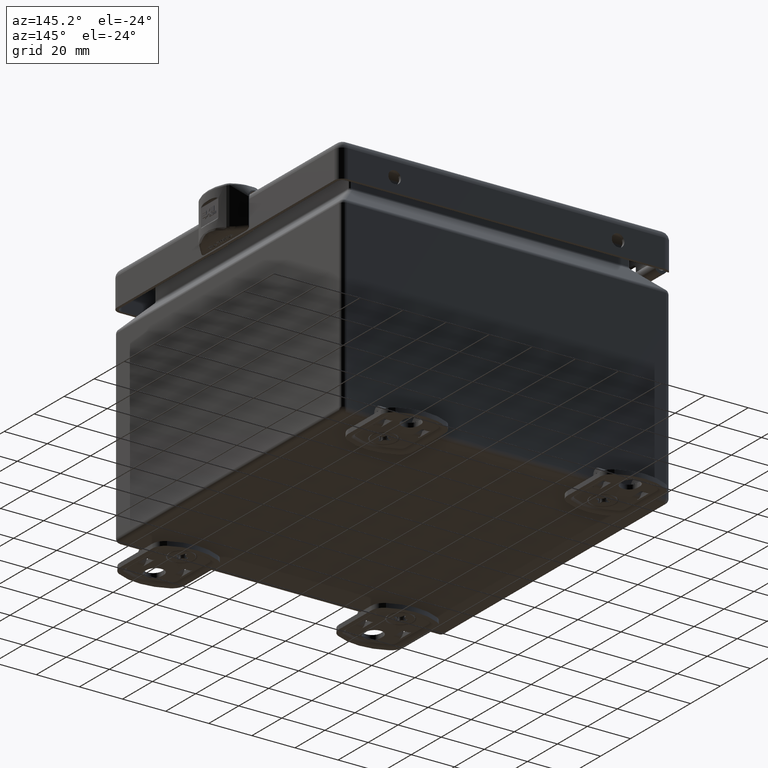
[diagram: clean part render]
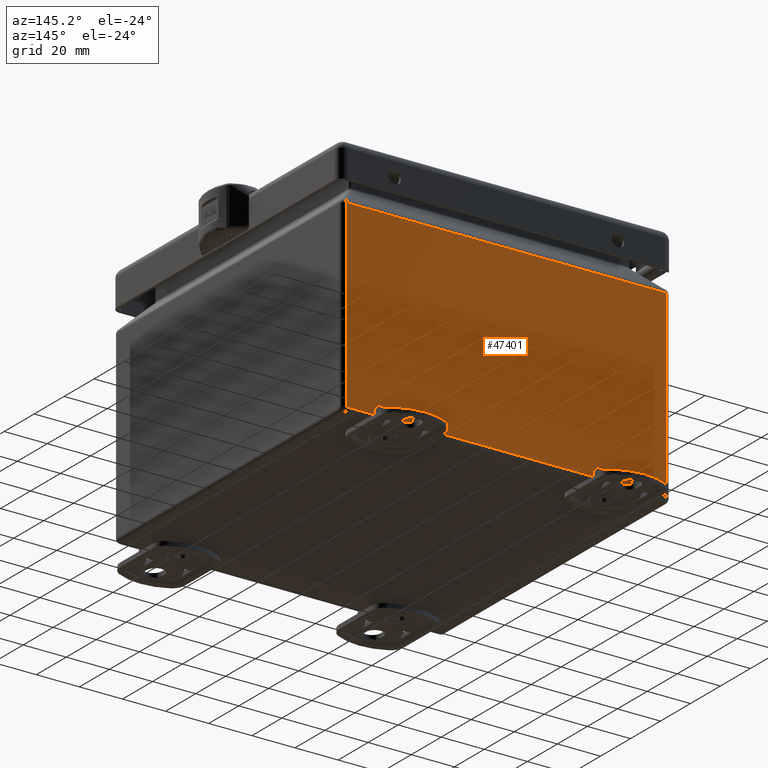
[diagram: same view with one face highlighted and labeled with its STEP entity id]
A machine part, auxiliary view. The second image highlights one B-rep face of the part: STEP entity #47401.
In plain terms, the highlighted planar face has unit normal (0, 1, 0).
Its self-contained STEP definition (entity closure, byte-faithful):
#2973=PLANE('',#51102);
#4232=FACE_OUTER_BOUND('',#7191,.T.);
#7191=EDGE_LOOP('',(#32642,#32643,#32644,#32645));
#10356=LINE('',#69498,#14384);
#10359=LINE('',#69513,#14387);
#10360=LINE('',#69520,#14388);
#10361=LINE('',#69521,#14389);
#14384=VECTOR('',#56095,0.393700787401575);
#14387=VECTOR('',#56118,0.393700787401575);
#14388=VECTOR('',#56131,0.393700787401575);
#14389=VECTOR('',#56132,0.393700787401575);
#20287=VERTEX_POINT('',#69491);
#20290=VERTEX_POINT('',#69496);
#20291=VERTEX_POINT('',#69510);
#20292=VERTEX_POINT('',#69512);
#24948=EDGE_CURVE('',#20290,#20287,#10356,.T.);
#24956=EDGE_CURVE('',#20291,#20292,#10359,.T.);
#24960=EDGE_CURVE('',#20292,#20290,#10360,.T.);
#24961=EDGE_CURVE('',#20287,#20291,#10361,.T.);
#32642=ORIENTED_EDGE('',*,*,#24948,.F.);
#32643=ORIENTED_EDGE('',*,*,#24960,.F.);
#32644=ORIENTED_EDGE('',*,*,#24956,.F.);
#32645=ORIENTED_EDGE('',*,*,#24961,.F.);
#47401=ADVANCED_FACE('',(#4232),#2973,.T.);
#51102=AXIS2_PLACEMENT_3D('',#69519,#56129,#56130);
#56095=DIRECTION('',(-8.47539707789791E-17,9.47019476145151E-17,-1.));
#56118=DIRECTION('',(-8.10202634738269E-17,-9.47019476145151E-17,1.));
#56129=DIRECTION('center_axis',(3.04444751532733E-17,1.,9.47019476145151E-17));
#56130=DIRECTION('ref_axis',(0.,-9.47019476145151E-17,1.));
#56131=DIRECTION('',(-1.,3.04444751532734E-17,-5.74287201250194E-17));
#56132=DIRECTION('',(1.,-3.04444751532733E-17,0.));
#69491=CARTESIAN_POINT('',(-2.916,3.,0.0839999999999999));
#69496=CARTESIAN_POINT('',(-2.916,3.,3.43715505376066));
#69498=CARTESIAN_POINT('',(-2.916,3.,2.06459086935095));
#69510=CARTESIAN_POINT('',(2.916,3.,0.0839999999999999));
#69512=CARTESIAN_POINT('',(2.916,3.,3.43715505376066));
#69513=CARTESIAN_POINT('',(2.916,3.,2.04359086935095));
#69519=CARTESIAN_POINT('Origin',(0.,3.,1.7359744965));
#69520=CARTESIAN_POINT('',(-3.78437134343651E-17,3.,3.43715505376066));
#69521=CARTESIAN_POINT('',(4.566671272991E-17,3.,0.0839999999999999));